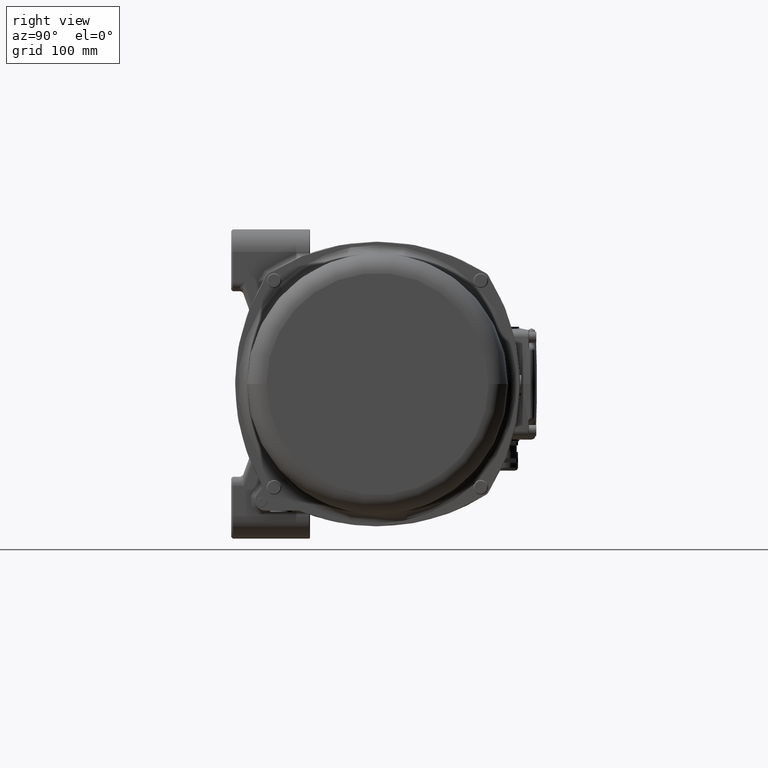
[diagram: clean part render]
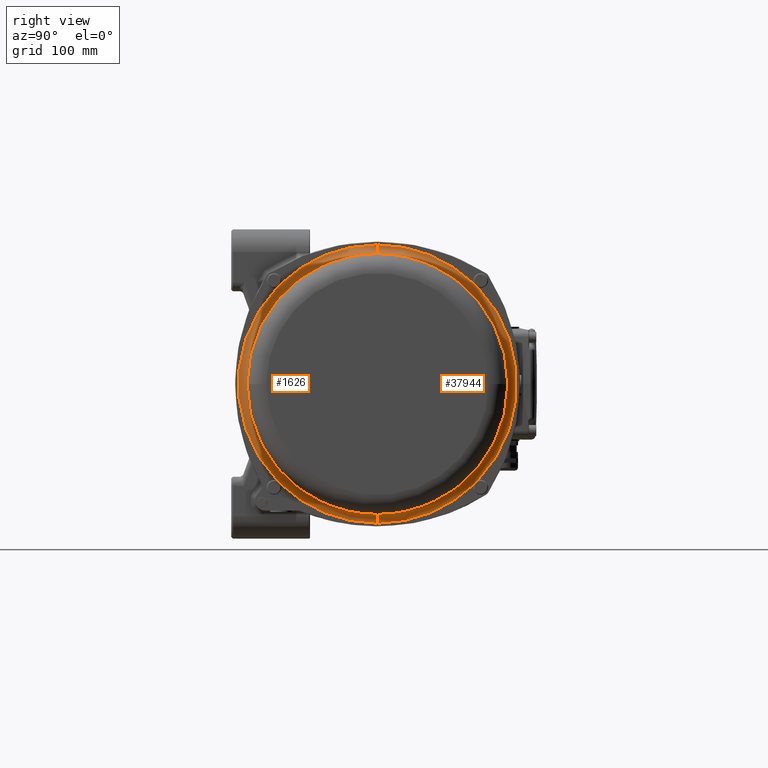
[diagram: same view with one multi-face feature highlighted, each face labeled with its STEP entity id]
A machine part, right view. The highlighted faces form ONE feature: a constant-radius fillet chain: 2 tangent blend faces with common blend radius 7.8 mm. The faces share edges in the B-rep.
Their STEP definitions:
[1] entity #1626 (Torus):
#172 = CARTESIAN_POINT ( 'NONE',  ( 132.7000000000000200, -86.26410856262950200, 88.72748206665228600 ) ) ;
#298 = CARTESIAN_POINT ( 'NONE',  ( 132.7012465975998600, -86.57124865934147800, 88.22449525120529800 ) ) ;
#1626 = ADVANCED_FACE ( 'NONE', ( #113981 ), #92716, .F. ) ;
#2508 = CIRCLE ( 'NONE', #89833, 115.9500000000000000 ) ;
#4014 = AXIS2_PLACEMENT_3D ( 'NONE', #89713, #39256, #132278 ) ;
#7723 = DIRECTION ( 'NONE',  ( -1.000000000000000000, 0.0000000000000000000, 0.0000000000000000000 ) ) ;
#9009 = CARTESIAN_POINT ( 'NONE',  ( 132.7040112558172500, -87.53431699160179800, -87.12089808271835500 ) ) ;
#10533 = DIRECTION ( 'NONE',  ( -1.000000000000000000, 0.0000000000000000000, 0.0000000000000000000 ) ) ;
#11331 = VERTEX_POINT ( 'NONE', #111717 ) ;
#12267 = EDGE_CURVE ( 'NONE', #97848, #126324, #65236, .T. ) ;
#13453 = DIRECTION ( 'NONE',  ( 0.0000000000000000000, 0.0000000000000000000, 1.000000000000000000 ) ) ;
#15989 = EDGE_CURVE ( 'NONE', #97848, #90569, #122041, .T. ) ;
#18349 = DIRECTION ( 'NONE',  ( 0.0000000000000000000, 0.0000000000000000000, 1.000000000000000000 ) ) ;
#20091 = CARTESIAN_POINT ( 'NONE',  ( 132.7000000000000200, -88.72748206658700100, -86.26410856266640800 ) ) ;
#20263 = CARTESIAN_POINT ( 'NONE',  ( 140.5000000000000000, 0.0000000000000000000, 0.0000000000000000000 ) ) ;
#20550 = CARTESIAN_POINT ( 'NONE',  ( 132.7039997587137100, -86.90911983409235100, -87.74657692102988400 ) ) ;
#21964 = CARTESIAN_POINT ( 'NONE',  ( 132.7000000000000200, 0.0000000000000000000, 0.0000000000000000000 ) ) ;
#23769 = ORIENTED_EDGE ( 'NONE', *, *, #129239, .F. ) ;
#24053 = EDGE_CURVE ( 'NONE', #11331, #90569, #123132, .T. ) ;
#24420 = AXIS2_PLACEMENT_3D ( 'NONE', #94676, #31395, #73517 ) ;
#24932 = EDGE_LOOP ( 'NONE', ( #27815, #131583, #36769, #116197, #23769, #87254, #29285, #114400, #96769 ) ) ;
#27815 = ORIENTED_EDGE ( 'NONE', *, *, #24053, .F. ) ;
#29285 = ORIENTED_EDGE ( 'NONE', *, *, #54162, .T. ) ;
#30016 = CARTESIAN_POINT ( 'NONE',  ( 140.5000000000000000, 0.0000000000000000000, 0.0000000000000000000 ) ) ;
#30813 = DIRECTION ( 'NONE',  ( 0.0000000000000000000, 0.0000000000000000000, 1.000000000000000000 ) ) ;
#31395 = DIRECTION ( 'NONE',  ( 0.0000000000000000000, -1.000000000000000000, 0.0000000000000000000 ) ) ;
#31561 = CARTESIAN_POINT ( 'NONE',  ( 132.7000000000003600, -86.40954958901944800, 88.46995380832854000 ) ) ;
#32438 = CARTESIAN_POINT ( 'NONE',  ( 132.7040112558171900, -87.12089808268251500, 87.53431699164066500 ) ) ;
#32892 = CARTESIAN_POINT ( 'NONE',  ( 132.7032505561926700, -86.92642474102784400, 87.75716062208604700 ) ) ;
#36085 = VERTEX_POINT ( 'NONE', #57679 ) ;
#36578 = CARTESIAN_POINT ( 'NONE',  ( 140.5000000000000000, 0.0000000000000000000, 0.0000000000000000000 ) ) ;
#36769 = ORIENTED_EDGE ( 'NONE', *, *, #129160, .T. ) ;
#39256 = DIRECTION ( 'NONE',  ( 0.0000000000000000000, 1.000000000000000000, 1.224646799147353200E-016 ) ) ;
#42105 = CARTESIAN_POINT ( 'NONE',  ( 132.6999999999988200, -88.21242733126368300, 86.55498960949375900 ) ) ;
#42626 = DIRECTION ( 'NONE',  ( 0.0000000000000000000, 0.0000000000000000000, 1.000000000000000000 ) ) ;
#43460 = CARTESIAN_POINT ( 'NONE',  ( 132.7000000000000200, -88.72748206667630200, 86.26410856268820700 ) ) ;
#48742 = EDGE_CURVE ( 'NONE', #83807, #104255, #2508, .T. ) ;
#51670 = CARTESIAN_POINT ( 'NONE',  ( 140.5000000000000000, -115.9500000000000000, 0.0000000000000000000 ) ) ;
#53101 = CARTESIAN_POINT ( 'NONE',  ( 132.7039997587139100, -87.74657692099843600, 86.90911983411759000 ) ) ;
#53145 = AXIS2_PLACEMENT_3D ( 'NONE', #132502, #7723, #18349 ) ;
#54162 = EDGE_CURVE ( 'NONE', #67384, #126324, #134342, .T. ) ;
#55578 = CIRCLE ( 'NONE', #53145, 123.7500000000000000 ) ;
#57679 = CARTESIAN_POINT ( 'NONE',  ( 140.5000000000000000, 1.467739188778458000E-014, -115.9500000000000000 ) ) ;
#58108 = DIRECTION ( 'NONE',  ( 0.0000000000000000000, 0.0000000000000000000, 1.000000000000000000 ) ) ;
#58148 = CARTESIAN_POINT ( 'NONE',  ( 140.5000000000000000, 0.0000000000000000000, 115.9500000000000000 ) ) ;
#60123 = CIRCLE ( 'NONE', #4014, 7.800000000000001600 ) ;
#62269 = CARTESIAN_POINT ( 'NONE',  ( 132.7032505561927300, -87.75716062204205100, -86.92642474106489200 ) ) ;
#63014 = DIRECTION ( 'NONE',  ( -1.000000000000000000, 0.0000000000000000000, 0.0000000000000000000 ) ) ;
#65236 = CIRCLE ( 'NONE', #72399, 123.7500000000036000 ) ;
#67384 = VERTEX_POINT ( 'NONE', #172 ) ;
#68546 = CARTESIAN_POINT ( 'NONE',  ( 132.7000000000000200, 0.0000000000000000000, 123.7500000000000000 ) ) ;
#72399 = AXIS2_PLACEMENT_3D ( 'NONE', #21964, #126932, #42626 ) ;
#73517 = DIRECTION ( 'NONE',  ( 0.0000000000000000000, 0.0000000000000000000, -1.000000000000000000 ) ) ;
#74363 = AXIS2_PLACEMENT_3D ( 'NONE', #30016, #63014, #13453 ) ;
#74610 = AXIS2_PLACEMENT_3D ( 'NONE', #36578, #120908, #58108 ) ;
#77682 = VERTEX_POINT ( 'NONE', #68546 ) ;
#83385 = CARTESIAN_POINT ( 'NONE',  ( 132.7012465976000600, -88.22449525115091300, -86.57124865937937800 ) ) ;
#83807 = VERTEX_POINT ( 'NONE', #51670 ) ;
#84726 = CIRCLE ( 'NONE', #24420, 7.800000000000001600 ) ;
#87254 = ORIENTED_EDGE ( 'NONE', *, *, #126262, .F. ) ;
#89042 = CARTESIAN_POINT ( 'NONE',  ( 132.7000000000000200, -88.72748206667630200, 86.26410856268820700 ) ) ;
#89713 = CARTESIAN_POINT ( 'NONE',  ( 140.5000000000000000, 1.515500413944849700E-014, -123.7500000000000000 ) ) ;
#89833 = AXIS2_PLACEMENT_3D ( 'NONE', #20263, #10533, #30813 ) ;
#90569 = VERTEX_POINT ( 'NONE', #133376 ) ;
#92716 = TOROIDAL_SURFACE ( 'NONE', #74610, 123.7500000000000000, 7.799999999999999800 ) ;
#94397 = CARTESIAN_POINT ( 'NONE',  ( 132.6999999999985700, -86.55498960946400200, -88.21242733130820600 ) ) ;
#94676 = CARTESIAN_POINT ( 'NONE',  ( 140.5000000000000000, 0.0000000000000000000, 123.7500000000000000 ) ) ;
#96769 = ORIENTED_EDGE ( 'NONE', *, *, #15989, .T. ) ;
#97848 = VERTEX_POINT ( 'NONE', #125356 ) ;
#98246 = DIRECTION ( 'NONE',  ( -1.000000000000000000, 0.0000000000000000000, 0.0000000000000000000 ) ) ;
#104017 = CARTESIAN_POINT ( 'NONE',  ( 132.7000000000000200, -86.26410856267610000, -88.72748206669520200 ) ) ;
#104255 = VERTEX_POINT ( 'NONE', #58148 ) ;
#105034 = AXIS2_PLACEMENT_3D ( 'NONE', #119697, #98246, #118369 ) ;
#109336 = CIRCLE ( 'NONE', #74363, 115.9500000000000000 ) ;
#111717 = CARTESIAN_POINT ( 'NONE',  ( 132.7000000000000200, 1.515500413944858200E-014, -123.7500000000007000 ) ) ;
#112737 = CARTESIAN_POINT ( 'NONE',  ( 132.7000000000000200, -86.26410856262950200, 88.72748206665228600 ) ) ;
#113981 = FACE_OUTER_BOUND ( 'NONE', #24932, .T. ) ;
#114400 = ORIENTED_EDGE ( 'NONE', *, *, #12267, .F. ) ;
#116197 = ORIENTED_EDGE ( 'NONE', *, *, #48742, .T. ) ;
#118369 = DIRECTION ( 'NONE',  ( 0.0000000000000000000, 0.0000000000000000000, 1.000000000000000000 ) ) ;
#119697 = CARTESIAN_POINT ( 'NONE',  ( 132.7000000000000200, 0.0000000000000000000, 0.0000000000000000000 ) ) ;
#120908 = DIRECTION ( 'NONE',  ( -1.000000000000000000, 0.0000000000000000000, 0.0000000000000000000 ) ) ;
#122041 = B_SPLINE_CURVE_WITH_KNOTS ( 'NONE', 3,
 ( #20091, #136032, #83385, #62269, #9009, #20550, #94397, #104017 ),
 .UNSPECIFIED., .F., .F.,
 ( 4, 2, 2, 4 ),
 ( 0.0000000000000000000, 0.0008804252598094787300, 0.001760850519618957500, 0.003521701039237973500 ),
 .UNSPECIFIED. ) ;
#123132 = CIRCLE ( 'NONE', #105034, 123.7500000000014100 ) ;
#125356 = CARTESIAN_POINT ( 'NONE',  ( 132.7000000000000200, -88.72748206658700100, -86.26410856266640800 ) ) ;
#126262 = EDGE_CURVE ( 'NONE', #67384, #77682, #55578, .T. ) ;
#126324 = VERTEX_POINT ( 'NONE', #89042 ) ;
#126932 = DIRECTION ( 'NONE',  ( -1.000000000000000000, 0.0000000000000000000, 0.0000000000000000000 ) ) ;
#129074 = EDGE_CURVE ( 'NONE', #11331, #36085, #60123, .T. ) ;
#129160 = EDGE_CURVE ( 'NONE', #36085, #83807, #109336, .T. ) ;
#129239 = EDGE_CURVE ( 'NONE', #77682, #104255, #84726, .T. ) ;
#131583 = ORIENTED_EDGE ( 'NONE', *, *, #129074, .T. ) ;
#132278 = DIRECTION ( 'NONE',  ( 0.0000000000000000000, -1.224646799147352000E-016, 1.000000000000000000 ) ) ;
#132502 = CARTESIAN_POINT ( 'NONE',  ( 132.7000000000000200, 0.0000000000000000000, 0.0000000000000000000 ) ) ;
#133376 = CARTESIAN_POINT ( 'NONE',  ( 132.7000000000000200, -86.26410856267610000, -88.72748206669520200 ) ) ;
#134342 = B_SPLINE_CURVE_WITH_KNOTS ( 'NONE', 3,
 ( #112737, #31561, #298, #32892, #32438, #53101, #42105, #43460 ),
 .UNSPECIFIED., .F., .F.,
 ( 4, 2, 2, 4 ),
 ( 0.0000000000000000000, 0.0008804252598226586100, 0.001760850519645317200, 0.003521701039290664400 ),
 .UNSPECIFIED. ) ;
#136032 = CARTESIAN_POINT ( 'NONE',  ( 132.7000000000005000, -88.46995380826874100, -86.40954958905713600 ) ) ;
[2] entity #37944 (Torus):
#582 = AXIS2_PLACEMENT_3D ( 'NONE', #16762, #26420, #121729 ) ;
#4014 = AXIS2_PLACEMENT_3D ( 'NONE', #89713, #39256, #132278 ) ;
#4206 = CIRCLE ( 'NONE', #582, 115.9500000000000000 ) ;
#4397 = CARTESIAN_POINT ( 'NONE',  ( 132.7000000000000200, 0.0000000000000000000, 0.0000000000000000000 ) ) ;
#7292 = CARTESIAN_POINT ( 'NONE',  ( 132.7000000000000200, 0.0000000000000000000, 0.0000000000000000000 ) ) ;
#9480 = CARTESIAN_POINT ( 'NONE',  ( 132.7039997587137900, 87.74657692102074700, -86.90911983410188700 ) ) ;
#11331 = VERTEX_POINT ( 'NONE', #111717 ) ;
#12068 = CARTESIAN_POINT ( 'NONE',  ( 132.7000000000000200, 86.26410856269311000, -88.72748206653970700 ) ) ;
#13360 = CIRCLE ( 'NONE', #65746, 123.7500000000000000 ) ;
#13810 = DIRECTION ( 'NONE',  ( 0.0000000000000000000, 0.0000000000000000000, 1.000000000000000000 ) ) ;
#14510 = CIRCLE ( 'NONE', #104122, 115.9500000000000000 ) ;
#15156 = EDGE_CURVE ( 'NONE', #35489, #27159, #123185, .T. ) ;
#15518 = ORIENTED_EDGE ( 'NONE', *, *, #119001, .F. ) ;
#16762 = CARTESIAN_POINT ( 'NONE',  ( 140.5000000000000000, 0.0000000000000000000, 0.0000000000000000000 ) ) ;
#24420 = AXIS2_PLACEMENT_3D ( 'NONE', #94676, #31395, #73517 ) ;
#26417 = ORIENTED_EDGE ( 'NONE', *, *, #120848, .F. ) ;
#26420 = DIRECTION ( 'NONE',  ( -1.000000000000000000, 0.0000000000000000000, 0.0000000000000000000 ) ) ;
#27001 = AXIS2_PLACEMENT_3D ( 'NONE', #28036, #60120, #101428 ) ;
#27159 = VERTEX_POINT ( 'NONE', #66314 ) ;
#28036 = CARTESIAN_POINT ( 'NONE',  ( 132.7000000000000200, 0.0000000000000000000, 0.0000000000000000000 ) ) ;
#29137 = FACE_OUTER_BOUND ( 'NONE', #56995, .T. ) ;
#30671 = CARTESIAN_POINT ( 'NONE',  ( 132.7000000000000200, 88.72748206665559700, -86.26410856269819800 ) ) ;
#31395 = DIRECTION ( 'NONE',  ( 0.0000000000000000000, -1.000000000000000000, 0.0000000000000000000 ) ) ;
#34348 = AXIS2_PLACEMENT_3D ( 'NONE', #57006, #47384, #109722 ) ;
#35489 = VERTEX_POINT ( 'NONE', #12068 ) ;
#35686 = CARTESIAN_POINT ( 'NONE',  ( 132.7012465975988400, 86.57124865940514300, 88.22449525121454900 ) ) ;
#36085 = VERTEX_POINT ( 'NONE', #57679 ) ;
#36095 = EDGE_CURVE ( 'NONE', #109702, #88755, #48895, .T. ) ;
#36147 = CARTESIAN_POINT ( 'NONE',  ( 132.7000000000000200, 86.26410856269501400, 88.72748206666020100 ) ) ;
#36589 = CARTESIAN_POINT ( 'NONE',  ( 132.7040112558167400, 87.12089808268527200, 87.53431699165919600 ) ) ;
#37944 = ADVANCED_FACE ( 'NONE', ( #29137 ), #45516, .F. ) ;
#39256 = DIRECTION ( 'NONE',  ( 0.0000000000000000000, 1.000000000000000000, 1.224646799147353200E-016 ) ) ;
#41083 = CARTESIAN_POINT ( 'NONE',  ( 132.7000000000000200, 86.26410856269501400, 88.72748206666020100 ) ) ;
#43541 = CARTESIAN_POINT ( 'NONE',  ( 132.7040112558173100, 87.12089808272620000, -87.53431699159369800 ) ) ;
#44891 = CIRCLE ( 'NONE', #27001, 123.7500000000000000 ) ;
#45516 = TOROIDAL_SURFACE ( 'NONE', #34348, 123.7500000000000000, 7.799999999999999800 ) ;
#46707 = CARTESIAN_POINT ( 'NONE',  ( 132.7000000000013800, 88.21242733115713000, 86.55498960950340900 ) ) ;
#46868 = ORIENTED_EDGE ( 'NONE', *, *, #92147, .F. ) ;
#47384 = DIRECTION ( 'NONE',  ( -1.000000000000000000, 0.0000000000000000000, 0.0000000000000000000 ) ) ;
#48895 = B_SPLINE_CURVE_WITH_KNOTS ( 'NONE', 3,
 ( #36147, #108579, #35686, #78741, #36589, #120005, #46707, #89332 ),
 .UNSPECIFIED., .F., .F.,
 ( 4, 2, 2, 4 ),
 ( 1.489112498819074200E-014, 0.0008804252597930860200, 0.001760850519571281000, 0.003521701039127671100 ),
 .UNSPECIFIED. ) ;
#56995 = EDGE_LOOP ( 'NONE', ( #85132, #46868, #60585, #26417, #86702, #15518, #112851, #89571, #123289 ) ) ;
#57006 = CARTESIAN_POINT ( 'NONE',  ( 140.5000000000000000, 0.0000000000000000000, 0.0000000000000000000 ) ) ;
#57679 = CARTESIAN_POINT ( 'NONE',  ( 140.5000000000000000, 1.467739188778458000E-014, -115.9500000000000000 ) ) ;
#58148 = CARTESIAN_POINT ( 'NONE',  ( 140.5000000000000000, 0.0000000000000000000, 115.9500000000000000 ) ) ;
#60120 = DIRECTION ( 'NONE',  ( -1.000000000000000000, 0.0000000000000000000, 0.0000000000000000000 ) ) ;
#60123 = CIRCLE ( 'NONE', #4014, 7.800000000000001600 ) ;
#60585 = ORIENTED_EDGE ( 'NONE', *, *, #15156, .T. ) ;
#62474 = CIRCLE ( 'NONE', #129990, 123.7500000000014100 ) ;
#65746 = AXIS2_PLACEMENT_3D ( 'NONE', #4397, #76924, #88887 ) ;
#66314 = CARTESIAN_POINT ( 'NONE',  ( 132.7000000000000200, 88.72748206665559700, -86.26410856269819800 ) ) ;
#68546 = CARTESIAN_POINT ( 'NONE',  ( 132.7000000000000200, 0.0000000000000000000, 123.7500000000000000 ) ) ;
#72125 = DIRECTION ( 'NONE',  ( -1.000000000000000000, 0.0000000000000000000, 0.0000000000000000000 ) ) ;
#73517 = DIRECTION ( 'NONE',  ( 0.0000000000000000000, 0.0000000000000000000, -1.000000000000000000 ) ) ;
#75500 = EDGE_CURVE ( 'NONE', #79801, #36085, #14510, .T. ) ;
#76924 = DIRECTION ( 'NONE',  ( -1.000000000000000000, 0.0000000000000000000, 0.0000000000000000000 ) ) ;
#77682 = VERTEX_POINT ( 'NONE', #68546 ) ;
#78486 = EDGE_CURVE ( 'NONE', #104255, #79801, #4206, .T. ) ;
#78741 = CARTESIAN_POINT ( 'NONE',  ( 132.7032505561917600, 86.92642474105160500, 87.75716062210221900 ) ) ;
#79801 = VERTEX_POINT ( 'NONE', #107253 ) ;
#82046 = CARTESIAN_POINT ( 'NONE',  ( 132.7000000000000200, 86.26410856269311000, -88.72748206653970700 ) ) ;
#84726 = CIRCLE ( 'NONE', #24420, 7.800000000000001600 ) ;
#85132 = ORIENTED_EDGE ( 'NONE', *, *, #129074, .F. ) ;
#86702 = ORIENTED_EDGE ( 'NONE', *, *, #36095, .F. ) ;
#88755 = VERTEX_POINT ( 'NONE', #95345 ) ;
#88887 = DIRECTION ( 'NONE',  ( 0.0000000000000000000, 0.0000000000000000000, 1.000000000000000000 ) ) ;
#89332 = CARTESIAN_POINT ( 'NONE',  ( 132.7000000000000200, 88.72748206654229400, 86.26410856269160400 ) ) ;
#89571 = ORIENTED_EDGE ( 'NONE', *, *, #78486, .T. ) ;
#89713 = CARTESIAN_POINT ( 'NONE',  ( 140.5000000000000000, 1.515500413944849700E-014, -123.7500000000000000 ) ) ;
#91312 = DIRECTION ( 'NONE',  ( -1.000000000000000000, 0.0000000000000000000, 0.0000000000000000000 ) ) ;
#92145 = CARTESIAN_POINT ( 'NONE',  ( 132.7000000000007300, 86.40954958908180600, -88.46995380823013000 ) ) ;
#92147 = EDGE_CURVE ( 'NONE', #35489, #11331, #62474, .T. ) ;
#93519 = CARTESIAN_POINT ( 'NONE',  ( 132.7032505561929300, 86.92642474107816500, -87.75716062202664600 ) ) ;
#94676 = CARTESIAN_POINT ( 'NONE',  ( 140.5000000000000000, 0.0000000000000000000, 123.7500000000000000 ) ) ;
#95345 = CARTESIAN_POINT ( 'NONE',  ( 132.7000000000000200, 88.72748206654229400, 86.26410856269160400 ) ) ;
#101428 = DIRECTION ( 'NONE',  ( 0.0000000000000000000, 0.0000000000000000000, 1.000000000000000000 ) ) ;
#104122 = AXIS2_PLACEMENT_3D ( 'NONE', #114634, #72125, #13810 ) ;
#104255 = VERTEX_POINT ( 'NONE', #58148 ) ;
#107253 = CARTESIAN_POINT ( 'NONE',  ( 140.5000000000000000, 115.9500000000000000, 1.419977963611356200E-014 ) ) ;
#108579 = CARTESIAN_POINT ( 'NONE',  ( 132.6999999999994800, 86.40954958909456700, 88.46995380834549400 ) ) ;
#109702 = VERTEX_POINT ( 'NONE', #41083 ) ;
#109722 = DIRECTION ( 'NONE',  ( 0.0000000000000000000, 0.0000000000000000000, 1.000000000000000000 ) ) ;
#110580 = DIRECTION ( 'NONE',  ( 0.0000000000000000000, 0.0000000000000000000, 1.000000000000000000 ) ) ;
#111717 = CARTESIAN_POINT ( 'NONE',  ( 132.7000000000000200, 1.515500413944858200E-014, -123.7500000000007000 ) ) ;
#112851 = ORIENTED_EDGE ( 'NONE', *, *, #129239, .T. ) ;
#113194 = CARTESIAN_POINT ( 'NONE',  ( 132.7012465976002300, 86.57124865940089400, -88.22449525112037300 ) ) ;
#114634 = CARTESIAN_POINT ( 'NONE',  ( 140.5000000000000000, 0.0000000000000000000, 0.0000000000000000000 ) ) ;
#116838 = CARTESIAN_POINT ( 'NONE',  ( 132.6999999999991100, 88.21242733125186000, -86.55498960950483000 ) ) ;
#119001 = EDGE_CURVE ( 'NONE', #77682, #109702, #44891, .T. ) ;
#120005 = CARTESIAN_POINT ( 'NONE',  ( 132.7039997587149000, 87.74657692093889200, 86.90911983413411700 ) ) ;
#120848 = EDGE_CURVE ( 'NONE', #88755, #27159, #13360, .T. ) ;
#121729 = DIRECTION ( 'NONE',  ( 0.0000000000000000000, 0.0000000000000000000, 1.000000000000000000 ) ) ;
#123185 = B_SPLINE_CURVE_WITH_KNOTS ( 'NONE', 3,
 ( #82046, #92145, #113194, #93519, #43541, #9480, #116838, #30671 ),
 .UNSPECIFIED., .F., .F.,
 ( 4, 2, 2, 4 ),
 ( 0.0000000000000000000, 0.0008804252597840032300, 0.001760850519568006500, 0.003521701039136042800 ),
 .UNSPECIFIED. ) ;
#123289 = ORIENTED_EDGE ( 'NONE', *, *, #75500, .T. ) ;
#129074 = EDGE_CURVE ( 'NONE', #11331, #36085, #60123, .T. ) ;
#129239 = EDGE_CURVE ( 'NONE', #77682, #104255, #84726, .T. ) ;
#129990 = AXIS2_PLACEMENT_3D ( 'NONE', #7292, #91312, #110580 ) ;
#132278 = DIRECTION ( 'NONE',  ( 0.0000000000000000000, -1.224646799147352000E-016, 1.000000000000000000 ) ) ;